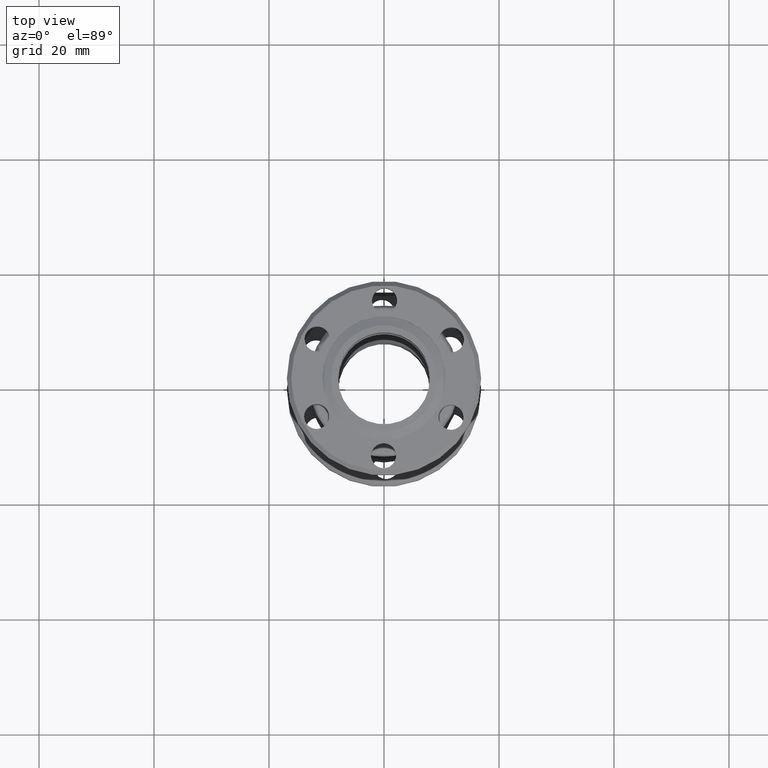
[diagram: clean part render]
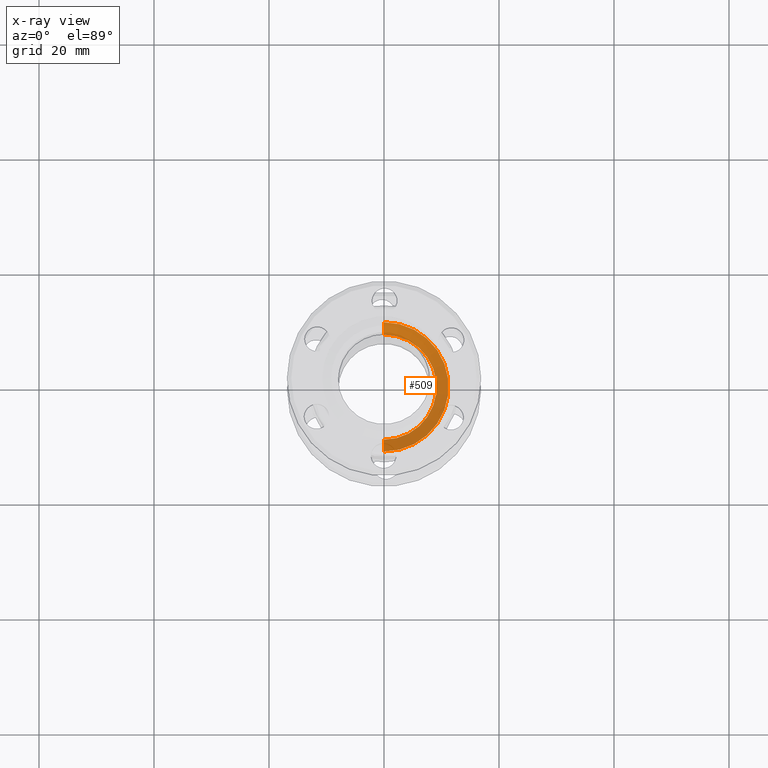
[diagram: x-ray — body ghosted, one internal face saturated and labeled with its STEP entity id]
A machine part, top view, then the same camera in x-ray: the body is ghosted and one INTERNAL B-rep face — a face not visible from any outside direction — is saturated and labeled: STEP entity #509.
In plain terms, the highlighted conical surface has half-angle 45 deg.
Its self-contained STEP definition (entity closure, byte-faithful):
#253 = FACE_OUTER_BOUND ( 'NONE', #3040, .T. ) ;
#284 = CONICAL_SURFACE ( 'NONE', #4385, 0.4424999999999997300, 0.7853981633974485000 ) ;
#509 = ADVANCED_FACE ( 'NONE', ( #253 ), #284, .F. ) ;
#684 = AXIS2_PLACEMENT_3D ( 'NONE', #1298, #1297, #1295 ) ;
#687 = AXIS2_PLACEMENT_3D ( 'NONE', #1310, #1309, #1308 ) ;
#946 = CARTESIAN_POINT ( 'NONE',  ( 5.419062086227033300E-017, 0.4424999999999996700, -0.01310701906485774200 ) ) ;
#1037 = CARTESIAN_POINT ( 'NONE',  ( 6.712883151898332600E-035, -0.4424999999999996700, -0.01310701906485763400 ) ) ;
#1099 = CARTESIAN_POINT ( 'NONE',  ( 4.824365040790622300E-017, 0.3599999999999991000, -0.09560701906485852300 ) ) ;
#1148 = CARTESIAN_POINT ( 'NONE',  ( -2.023728101348971100E-018, -0.3599999999999991000, -0.09560701906485841200 ) ) ;
#1295 = DIRECTION ( 'NONE',  ( 0.0000000000000000000, -1.000000000000000000, 1.422837496700140700E-016 ) ) ;
#1297 = DIRECTION ( 'NONE',  ( -2.116714987187462500E-017, -1.206174074689182600E-016, -1.000000000000000000 ) ) ;
#1298 = CARTESIAN_POINT ( 'NONE',  ( -2.023728101348971100E-018, -1.153187077543467600E-017, -0.09560701906485846700 ) ) ;
#1308 = DIRECTION ( 'NONE',  ( 0.0000000000000000000, -1.000000000000000000, 1.205794488728930700E-016 ) ) ;
#1309 = DIRECTION ( 'NONE',  ( -2.170430079712074400E-017, -1.205794488728930500E-016, -1.000000000000000000 ) ) ;
#1310 = CARTESIAN_POINT ( 'NONE',  ( 6.712883151898395600E-035, -8.235118137013883700E-033, -0.01310701906485768800 ) ) ;
#1373 = CARTESIAN_POINT ( 'NONE',  ( 1.549450096181482700E-033, -0.4424999999999997300, -0.01310701906485756700 ) ) ;
#1376 = DIRECTION ( 'NONE',  ( 1.019428638981060100E-016, 0.7071067811865477900, 0.7071067811865472400 ) ) ;
#1379 = CARTESIAN_POINT ( 'NONE',  ( 5.419062086227034600E-017, 0.4424999999999997300, -0.01310701906485767200 ) ) ;
#1543 = DIRECTION ( 'NONE',  ( 1.534725827455666300E-017, -0.7071067811865475700, 0.7071067811865474600 ) ) ;
#1850 = EDGE_CURVE ( 'NONE', #3261, #3347, #3473, .T. ) ;
#1852 = EDGE_CURVE ( 'NONE', #3948, #3306, #3475, .T. ) ;
#1867 = EDGE_CURVE ( 'NONE', #3347, #3306, #3454, .T. ) ;
#1870 = EDGE_CURVE ( 'NONE', #3261, #3948, #3451, .T. ) ;
#2060 = CARTESIAN_POINT ( 'NONE',  ( 1.549450096181482700E-033, 0.0000000000000000000, -0.01310701906485762000 ) ) ;
#2062 = DIRECTION ( 'NONE',  ( 2.170430079712074400E-017, 1.205794488728930500E-016, 1.000000000000000000 ) ) ;
#2073 = DIRECTION ( 'NONE',  ( 0.0000000000000000000, -1.000000000000000000, 1.205794488728930500E-016 ) ) ;
#2765 = ORIENTED_EDGE ( 'NONE', *, *, #1867, .F. ) ;
#2810 = ORIENTED_EDGE ( 'NONE', *, *, #1852, .T. ) ;
#2834 = ORIENTED_EDGE ( 'NONE', *, *, #1850, .F. ) ;
#2939 = ORIENTED_EDGE ( 'NONE', *, *, #1870, .T. ) ;
#3040 = EDGE_LOOP ( 'NONE', ( #2834, #2939, #2810, #2765 ) ) ;
#3261 = VERTEX_POINT ( 'NONE', #1099 ) ;
#3306 = VERTEX_POINT ( 'NONE', #1037 ) ;
#3347 = VERTEX_POINT ( 'NONE', #946 ) ;
#3451 = CIRCLE ( 'NONE', #684, 0.3599999999999991000 ) ;
#3454 = CIRCLE ( 'NONE', #687, 0.4424999999999996700 ) ;
#3469 = VECTOR ( 'NONE', #1543, 39.37007874015748100 ) ;
#3472 = VECTOR ( 'NONE', #1376, 39.37007874015748100 ) ;
#3473 = LINE ( 'NONE', #1379, #3472 ) ;
#3475 = LINE ( 'NONE', #1373, #3469 ) ;
#3948 = VERTEX_POINT ( 'NONE', #1148 ) ;
#4385 = AXIS2_PLACEMENT_3D ( 'NONE', #2060, #2062, #2073 ) ;